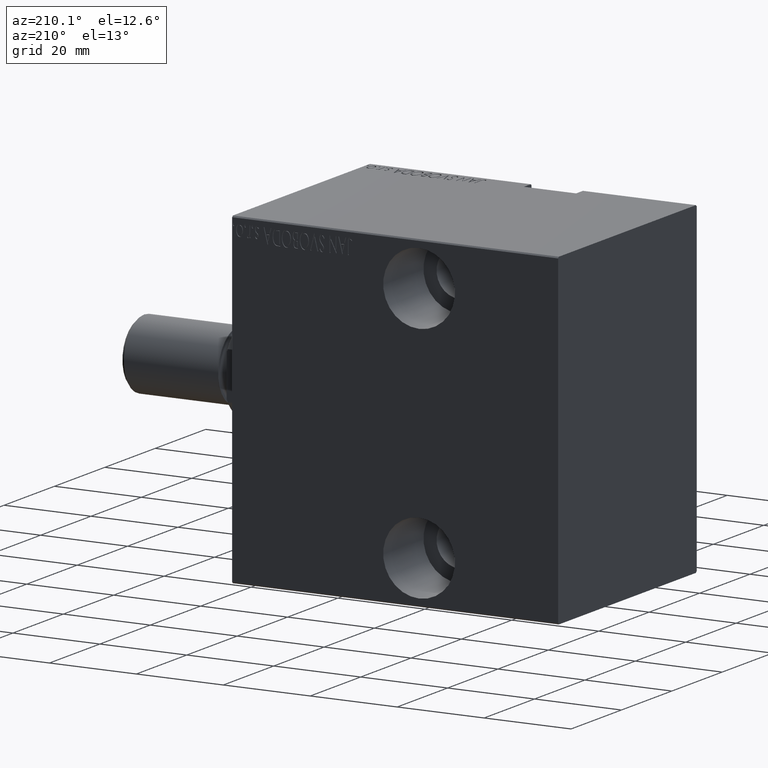
[diagram: clean part render]
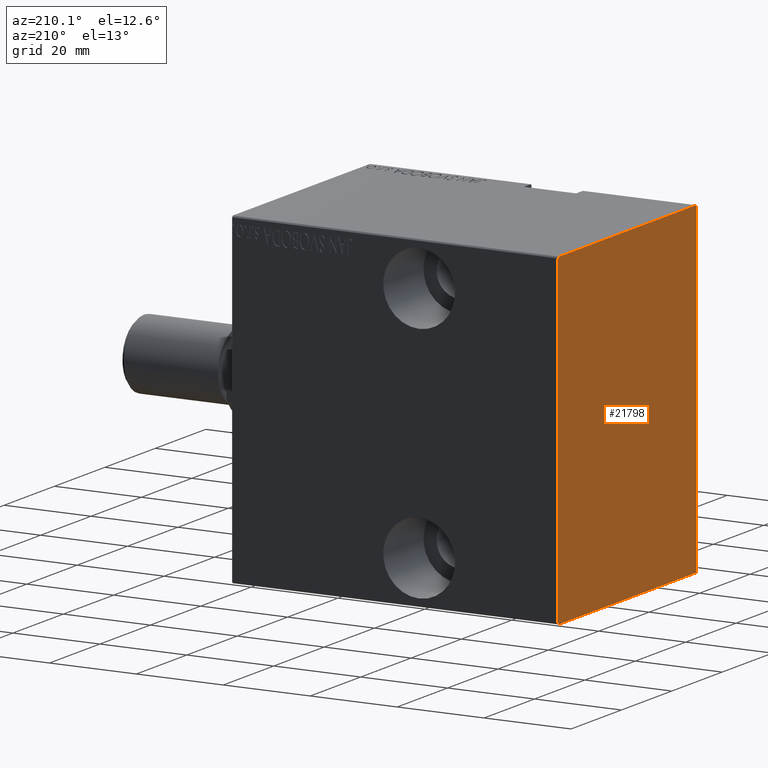
[diagram: same view with one face highlighted and labeled with its STEP entity id]
A machine part, auxiliary view. The second image highlights one B-rep face of the part: STEP entity #21798.
In plain terms, the highlighted planar face has unit normal (-1, 0, 0).
Its self-contained STEP definition (entity closure, byte-faithful):
#343 = DIRECTION ( 'NONE',  ( -0.000000000000000000, -0.7071067811865474617, 0.7071067811865474617 ) ) ;
#366 = CARTESIAN_POINT ( 'NONE',  ( 75.00000000000000000, -27.50000000000000000, -37.19999999999999574 ) ) ;
#1077 = CARTESIAN_POINT ( 'NONE',  ( 75.00000000000000000, 0.000000000000000000, 0.000000000000000000 ) ) ;
#1513 = CARTESIAN_POINT ( 'NONE',  ( 75.00000000000000000, -32.34999999999983800, 32.35000000000021458 ) ) ;
#1759 = CARTESIAN_POINT ( 'NONE',  ( 75.00000000000000000, -27.20000000000000284, 37.49999999999999289 ) ) ;
#2954 = CARTESIAN_POINT ( 'NONE',  ( 75.00000000000000000, 32.35000000000000142, 32.35000000000000142 ) ) ;
#3009 = ORIENTED_EDGE ( 'NONE', *, *, #22376, .T. ) ;
#4104 = EDGE_CURVE ( 'NONE', #26003, #28650, #26594, .T. ) ;
#4336 = EDGE_CURVE ( 'NONE', #7648, #29999, #29380, .T. ) ;
#4562 = DIRECTION ( 'NONE',  ( 0.000000000000000000, -9.251858538542970348E-17, 1.000000000000000000 ) ) ;
#5505 = ORIENTED_EDGE ( 'NONE', *, *, #37729, .T. ) ;
#6298 = CARTESIAN_POINT ( 'NONE',  ( 75.00000000000000000, 27.19999999999999929, -37.50000000000000711 ) ) ;
#6350 = CARTESIAN_POINT ( 'NONE',  ( 75.00000000000000000, 27.50000000000000355, -37.19999999999999574 ) ) ;
#6421 = DIRECTION ( 'NONE',  ( 0.000000000000000000, 0.000000000000000000, -1.000000000000000000 ) ) ;
#6468 = VECTOR ( 'NONE', #13299, 1000.000000000000000 ) ;
#6853 = LINE ( 'NONE', #2954, #27676 ) ;
#7648 = VERTEX_POINT ( 'NONE', #6298 ) ;
#7987 = DIRECTION ( 'NONE',  ( 0.000000000000000000, 1.000000000000000000, 0.000000000000000000 ) ) ;
#8024 = DIRECTION ( 'NONE',  ( 0.000000000000000000, 0.000000000000000000, -1.000000000000000000 ) ) ;
#8046 = LINE ( 'NONE', #15400, #41880 ) ;
#9709 = VERTEX_POINT ( 'NONE', #1759 ) ;
#10315 = CARTESIAN_POINT ( 'NONE',  ( 75.00000000000000000, -27.50000000000000000, 37.49999999999999289 ) ) ;
#10418 = PLANE ( 'NONE',  #25516 ) ;
#10432 = LINE ( 'NONE', #36914, #31595 ) ;
#10648 = LINE ( 'NONE', #1513, #34255 ) ;
#11453 = LINE ( 'NONE', #11879, #24466 ) ;
#11555 = EDGE_CURVE ( 'NONE', #29999, #33056, #10432, .T. ) ;
#11879 = CARTESIAN_POINT ( 'NONE',  ( 75.00000000000000000, -27.50000000000000000, -37.50000000000000711 ) ) ;
#12531 = CARTESIAN_POINT ( 'NONE',  ( 75.00000000000000000, -32.34999999999999432, -32.34999999999999432 ) ) ;
#13299 = DIRECTION ( 'NONE',  ( -0.000000000000000000, 0.7071067811865434649, 0.7071067811865516806 ) ) ;
#14415 = VECTOR ( 'NONE', #42710, 1000.000000000000114 ) ;
#14785 = ORIENTED_EDGE ( 'NONE', *, *, #11555, .T. ) ;
#15400 = CARTESIAN_POINT ( 'NONE',  ( 75.00000000000000000, 27.49999999999999645, 37.50000000000000711 ) ) ;
#15701 = ORIENTED_EDGE ( 'NONE', *, *, #25481, .T. ) ;
#16066 = ORIENTED_EDGE ( 'NONE', *, *, #4104, .T. ) ;
#17108 = CARTESIAN_POINT ( 'NONE',  ( 75.00000000000000000, -27.19999999999999218, -37.50000000000000711 ) ) ;
#19815 = CARTESIAN_POINT ( 'NONE',  ( 75.00000000000000000, 32.35000000000016485, -32.34999999999978826 ) ) ;
#21067 = DIRECTION ( 'NONE',  ( 0.000000000000000000, -1.000000000000000000, -2.523234146875355998E-16 ) ) ;
#21308 = VERTEX_POINT ( 'NONE', #33062 ) ;
#21798 = ADVANCED_FACE ( 'NONE', ( #40174 ), #10418, .T. ) ;
#22376 = EDGE_CURVE ( 'NONE', #28650, #26214, #32295, .T. ) ;
#23368 = ORIENTED_EDGE ( 'NONE', *, *, #4336, .T. ) ;
#23502 = CARTESIAN_POINT ( 'NONE',  ( 75.00000000000000000, 27.49999999999999645, 37.20000000000000995 ) ) ;
#24466 = VECTOR ( 'NONE', #7987, 1000.000000000000000 ) ;
#25481 = EDGE_CURVE ( 'NONE', #33056, #21308, #6853, .T. ) ;
#25516 = AXIS2_PLACEMENT_3D ( 'NONE', #1077, #27767, #8024 ) ;
#26003 = VERTEX_POINT ( 'NONE', #36481 ) ;
#26196 = ORIENTED_EDGE ( 'NONE', *, *, #37180, .T. ) ;
#26214 = VERTEX_POINT ( 'NONE', #17108 ) ;
#26594 = LINE ( 'NONE', #10315, #27967 ) ;
#27676 = VECTOR ( 'NONE', #343, 1000.000000000000114 ) ;
#27767 = DIRECTION ( 'NONE',  ( 1.000000000000000000, 0.000000000000000000, 0.000000000000000000 ) ) ;
#27967 = VECTOR ( 'NONE', #6421, 1000.000000000000000 ) ;
#28650 = VERTEX_POINT ( 'NONE', #366 ) ;
#29380 = LINE ( 'NONE', #19815, #6468 ) ;
#29999 = VERTEX_POINT ( 'NONE', #6350 ) ;
#31595 = VECTOR ( 'NONE', #4562, 1000.000000000000000 ) ;
#32295 = LINE ( 'NONE', #12531, #14415 ) ;
#33056 = VERTEX_POINT ( 'NONE', #23502 ) ;
#33062 = CARTESIAN_POINT ( 'NONE',  ( 75.00000000000000000, 27.20000000000000284, 37.50000000000000711 ) ) ;
#34255 = VECTOR ( 'NONE', #37557, 999.9999999999998863 ) ;
#36449 = EDGE_LOOP ( 'NONE', ( #26196, #23368, #14785, #15701, #5505, #42076, #16066, #3009 ) ) ;
#36481 = CARTESIAN_POINT ( 'NONE',  ( 75.00000000000000000, -27.50000000000000000, 37.19999999999999574 ) ) ;
#36914 = CARTESIAN_POINT ( 'NONE',  ( 75.00000000000000000, 27.50000000000000355, -37.50000000000000711 ) ) ;
#37180 = EDGE_CURVE ( 'NONE', #26214, #7648, #11453, .T. ) ;
#37557 = DIRECTION ( 'NONE',  ( 0.000000000000000000, -0.7071067811865515695, -0.7071067811865435759 ) ) ;
#37729 = EDGE_CURVE ( 'NONE', #21308, #9709, #8046, .T. ) ;
#39385 = EDGE_CURVE ( 'NONE', #9709, #26003, #10648, .T. ) ;
#40174 = FACE_OUTER_BOUND ( 'NONE', #36449, .T. ) ;
#41880 = VECTOR ( 'NONE', #21067, 1000.000000000000000 ) ;
#42076 = ORIENTED_EDGE ( 'NONE', *, *, #39385, .T. ) ;
#42710 = DIRECTION ( 'NONE',  ( -0.000000000000000000, 0.7071067811865474617, -0.7071067811865474617 ) ) ;